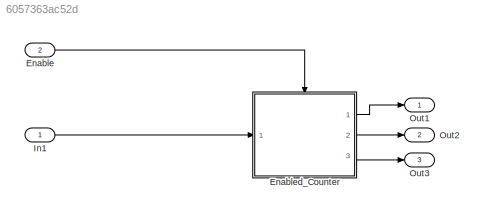
MODEL slx_6057363ac52d
KIND model
CONFIG AbsTol = auto
CONFIG EnableMultiTasking = on
CONFIG FixedStep = 0.200000
CONFIG MaxStep = auto
CONFIG MinStep = auto
CONFIG RelTol = 1e-3
CONFIG SampleTimeConstraint = Unconstrained
CONFIG Solver = FixedStepDiscrete
CONFIG SolverName = FixedStepDiscrete
CONFIG StartTime = 0.0
CONFIG StopTime = 10.0
BLOCK [Inport] Enable
  IconDisplay = Port number
  Port = 2
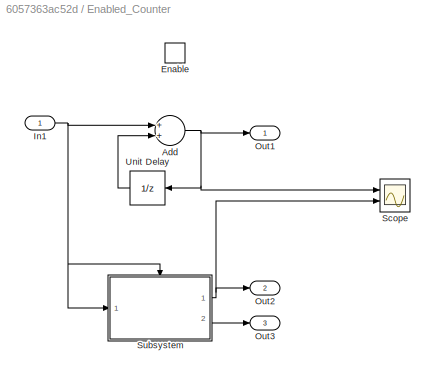
BLOCK [SubSystem] Enabled_Counter
  Ports = [1, 3, 1]
  RequestExecContextInheritance = off
  TreatAsAtomicUnit = on
  Variant = off
BLOCK [Sum] Enabled_Counter/Add
  InputSameDT = off
  OutDataTypeStr = Inherit: Inherit via internal rule
  Ports = [2, 1]
  SaturateOnIntegerOverflow = off
BLOCK [EnablePort] Enabled_Counter/Enable
  Ports = []
  StatesWhenEnabling = reset
BLOCK [Inport] Enabled_Counter/In1
  IconDisplay = Port number
BLOCK [Outport] Enabled_Counter/Out1
  IconDisplay = Port number
  InitialOutput = 1
  OutputWhenDisabled = reset
BLOCK [Outport] Enabled_Counter/Out2
  IconDisplay = Port number
  InitialOutput = 1
  OutputWhenDisabled = reset
  Port = 2
BLOCK [Outport] Enabled_Counter/Out3
  IconDisplay = Port number
  InitialOutput = 1
  OutputWhenDisabled = reset
  Port = 3
BLOCK [Scope] Enabled_Counter/Scope
  NumInputPorts = 2
  Ports = [2]
  ScopeSpecificationString = C++SS(StrPVP('Open','off'),StrPVP('TimeRange','auto'),StrPVP('TickLabels','OneTimeTick'),StrPVP('ShowLegends','off'),StrPVP('LimitDataPoints','off'),StrPVP('MaxDataPoints','5000'),StrPVP('SaveToWorkspace','off'),StrPVP('SaveName','ScopeData2'),StrPVP('YMin','-10.00000~-10.00000'),StrPVP('YMax','10.00000~10.00000'),StrPVP('BlockParamSampleInput','off'),StrPVP('BlockParamSampleTime','-1'),StrPVP('Zo...<+628ch>
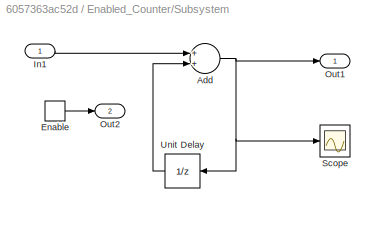
BLOCK [SubSystem] Enabled_Counter/Subsystem
  Ports = [1, 2, 1]
  RequestExecContextInheritance = off
  TreatAsAtomicUnit = on
  Variant = off
BLOCK [Sum] Enabled_Counter/Subsystem/Add
  InputSameDT = off
  OutDataTypeStr = Inherit: Inherit via internal rule
  Ports = [2, 1]
  SaturateOnIntegerOverflow = off
BLOCK [EnablePort] Enabled_Counter/Subsystem/Enable
  Ports = [0, 1]
  ShowOutputPort = on
  StatesWhenEnabling = reset
BLOCK [Inport] Enabled_Counter/Subsystem/In1
  IconDisplay = Port number
BLOCK [Outport] Enabled_Counter/Subsystem/Out1
  IconDisplay = Port number
  InitialOutput = 1
  OutputWhenDisabled = reset
BLOCK [Outport] Enabled_Counter/Subsystem/Out2
  IconDisplay = Port number
  InitialOutput = 1
  OutputWhenDisabled = reset
  Port = 2
BLOCK [Scope] Enabled_Counter/Subsystem/Scope
  NumInputPorts = 1
  Ports = [1]
  ScopeSpecificationString = C++SS(StrPVP('Open','off'),StrPVP('TimeRange','auto'),StrPVP('TickLabels','OneTimeTick'),StrPVP('ShowLegends','off'),StrPVP('LimitDataPoints','off'),StrPVP('MaxDataPoints','5000'),StrPVP('SaveToWorkspace','off'),StrPVP('SaveName','ScopeData1'),StrPVP('YMin','0.9'),StrPVP('YMax','1.1'),StrPVP('BlockParamSampleInput','off'),StrPVP('BlockParamSampleTime','-1'),StrPVP('ZoomMode','on'),StrPVP('Grid','o...<+569ch>
BLOCK [UnitDelay] Enabled_Counter/Subsystem/Unit Delay
  InputProcessing = Elements as channels (sample based)
  SampleTime = -1
BLOCK [UnitDelay] Enabled_Counter/Unit Delay
  InputProcessing = Elements as channels (sample based)
  SampleTime = -1
BLOCK [Inport] In1
  IconDisplay = Port number
BLOCK [Outport] Out1
  IconDisplay = Port number
BLOCK [Outport] Out2
  IconDisplay = Port number
  Port = 2
BLOCK [Outport] Out3
  IconDisplay = Port number
  Port = 3
LINE Enable:1 -> Enabled_Counter:enable
NET Enabled_Counter/Add:1 -> Enabled_Counter/Out1:1, Enabled_Counter/Scope:1, Enabled_Counter/Unit Delay:1
NET Enabled_Counter/In1:1 -> Enabled_Counter/Add:1, Enabled_Counter/Subsystem:1, Enabled_Counter/Subsystem:enable
NET Enabled_Counter/Subsystem/Add:1 -> Enabled_Counter/Subsystem/Out1:1, Enabled_Counter/Subsystem/Scope:1, Enabled_Counter/Subsystem/Unit Delay:1
LINE Enabled_Counter/Subsystem/Enable:1 -> Enabled_Counter/Subsystem/Out2:1
LINE Enabled_Counter/Subsystem/In1:1 -> Enabled_Counter/Subsystem/Add:1
LINE Enabled_Counter/Subsystem/Unit Delay:1 -> Enabled_Counter/Subsystem/Add:2
NET Enabled_Counter/Subsystem:1 -> Enabled_Counter/Out2:1, Enabled_Counter/Scope:2
LINE Enabled_Counter/Subsystem:2 -> Enabled_Counter/Out3:1
LINE Enabled_Counter/Unit Delay:1 -> Enabled_Counter/Add:2
LINE Enabled_Counter:1 -> Out1:1
LINE Enabled_Counter:2 -> Out2:1
LINE Enabled_Counter:3 -> Out3:1
LINE In1:1 -> Enabled_Counter:1
note: NET lines group one-source signal fan-out (src -> all destinations, sorted); 1:1 wires keep LINE
